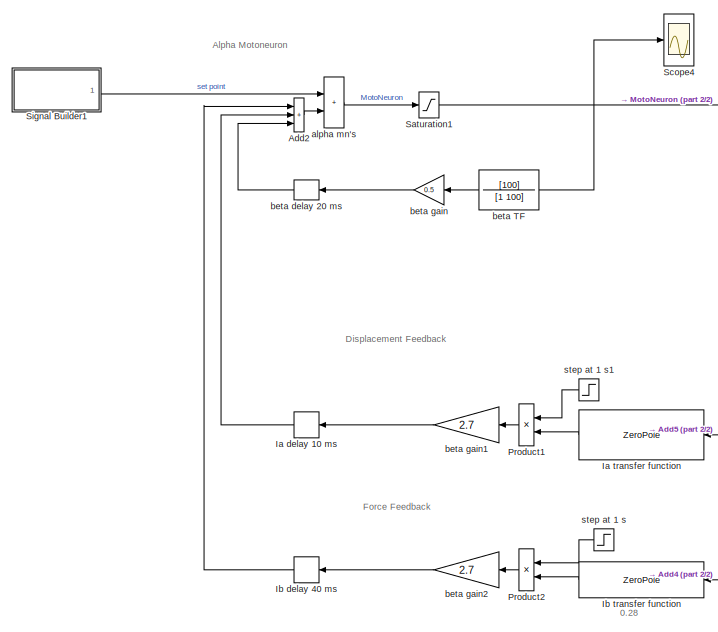
[diagram: root canvas - part 1/2, left side, full height]
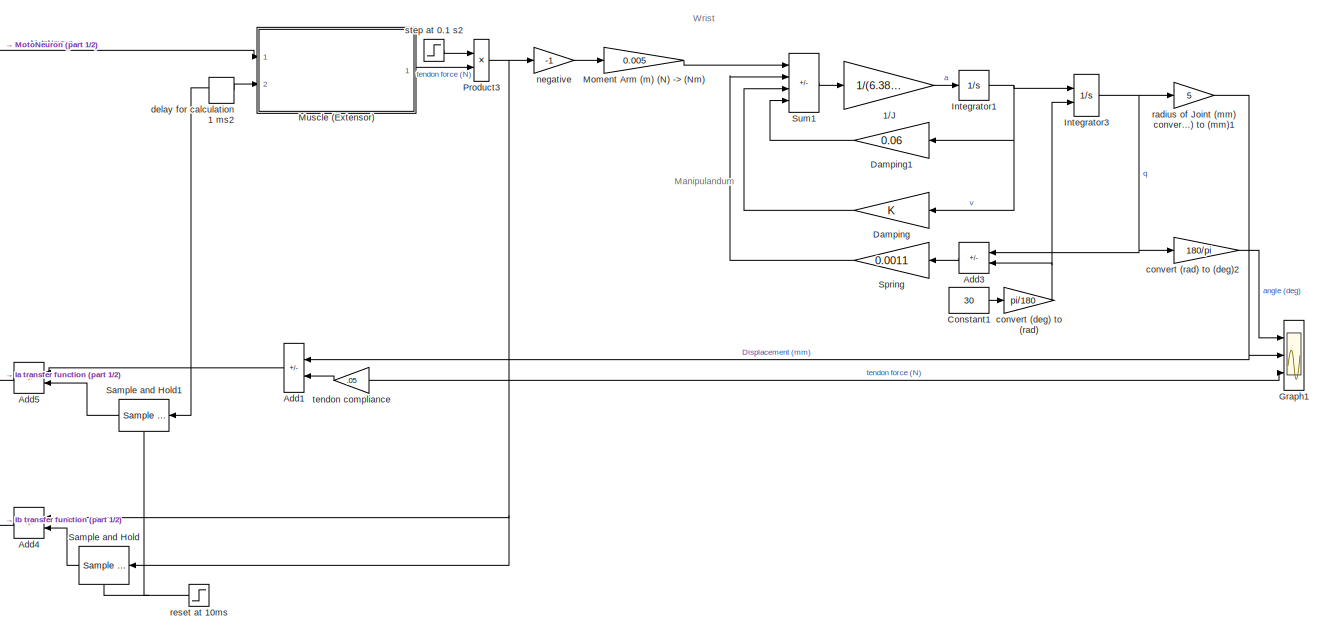
[diagram: root canvas - part 2/2, right side, full height]
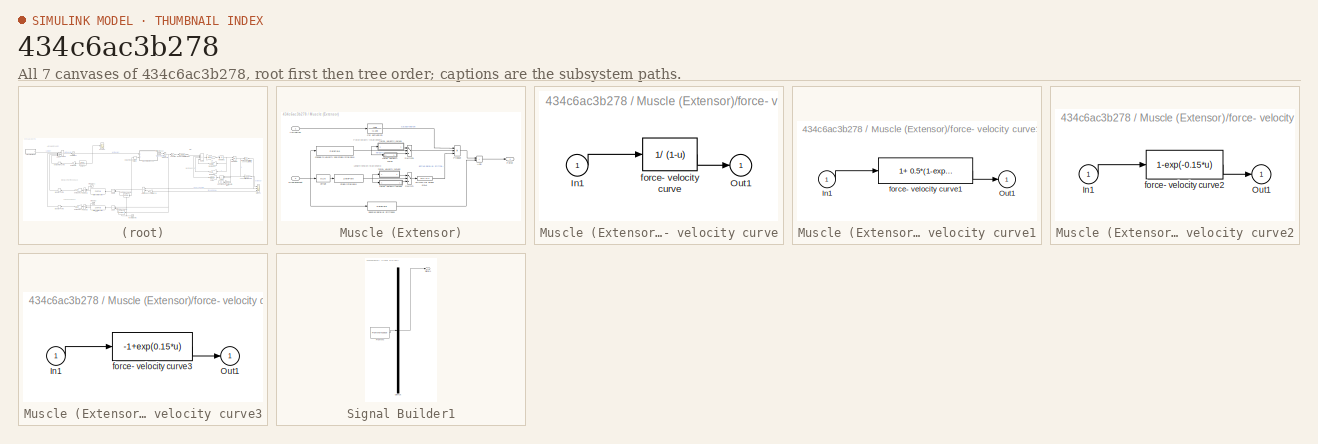
[diagram: thumbnail index - all 7 canvases of the model, root first then tree order]
MODEL slx_434c6ac3b278
KIND model
CONFIG AbsTol = auto
CONFIG EnableMultiTasking = off
CONFIG FixedStep = 0.001
CONFIG MaxStep = auto
CONFIG MinStep = auto
CONFIG RelTol = 1e-3
CONFIG SampleTimeConstraint = Unconstrained
CONFIG SolverName = ode4
CONFIG StartTime = 0.0
CONFIG StopTime = 4
BLOCK [Gain] 1//J 
  Gain = 1/(6.38e-3)
  OutDataTypeStr = Inherit: Same as input
  ParamDataTypeStr = Inherit: Same as input
  SaturateOnIntegerOverflow = on
BLOCK [Sum] Add1
  IconShape = rectangular
  Inputs = +-
  Ports = [2, 1]
BLOCK [Sum] Add2
  IconShape = rectangular
  Inputs = +++
  Ports = [3, 1]
BLOCK [Sum] Add3
  IconShape = rectangular
  Inputs = +-
  Ports = [2, 1]
BLOCK [Sum] Add4
  IconShape = rectangular
  Inputs = +-
  Ports = [2, 1]
BLOCK [Sum] Add5
  IconShape = rectangular
  Inputs = +-
  Ports = [2, 1]
BLOCK [Constant] Constant1
  Value = 30
BLOCK [Gain] Damping
  OutDataTypeStr = Inherit: Same as input
  ParamDataTypeStr = Inherit: Same as input
  SaturateOnIntegerOverflow = on
BLOCK [Gain] Damping1
  Gain = 0.06
  OutDataTypeStr = Inherit: Same as input
  ParamDataTypeStr = Inherit: Same as input
  SaturateOnIntegerOverflow = on
BLOCK [Scope] Graph1
  Floating = off
  NumInputPorts = 3
  Ports = [3]
  ScopeSpecificationString = Simulink.scopes.TimeScopeBlockCfg('CurrentConfiguration', extmgr.ConfigurationSet(extmgr.Configuration('Core','General UI',true),extmgr.Configuration('Core','Source UI',true),extmgr.Configuration('Sources','WiredSimulink',true,'DataLoggingSaveFormat','Array','DataLoggingDecimation','1','DataLoggingDecimateData',true,'DataLoggingVariableName','ScopeData1'),extmgr.Configuration('Visuals','Time Domai...<+3101ch>
BLOCK [TransportDelay] Ia delay 10 ms
  DelayTime = .01
  NameLocation = top
  Ports = [1, 1]
BLOCK [ZeroPole] Ia transfer function
  Poles = [-.04; -.8; -100; -100]
  Zeros = [0; -.4; -4; -44]
BLOCK [TransportDelay] Ib delay 40 ms
  DelayTime = 0.04
  NameLocation = top
  Ports = [1, 1]
BLOCK [ZeroPole] Ib transfer function
  Gain = [0.28]
  NameLocation = top
  Poles = [-.2; -2; -37]
  Zeros = [-.15; -1.5; -16]
BLOCK [Integrator] Integrator1
  Ports = [1, 1]
BLOCK [Integrator] Integrator3
  AttributesFormatString = q0 = %<InitialCondition> rad
  InitialCondition = 0.5236
  InitialConditionSource = external
  Ports = [2, 1]
BLOCK [Gain] Moment Arm (m) (N) -> (Nm)
  Gain = 0.005
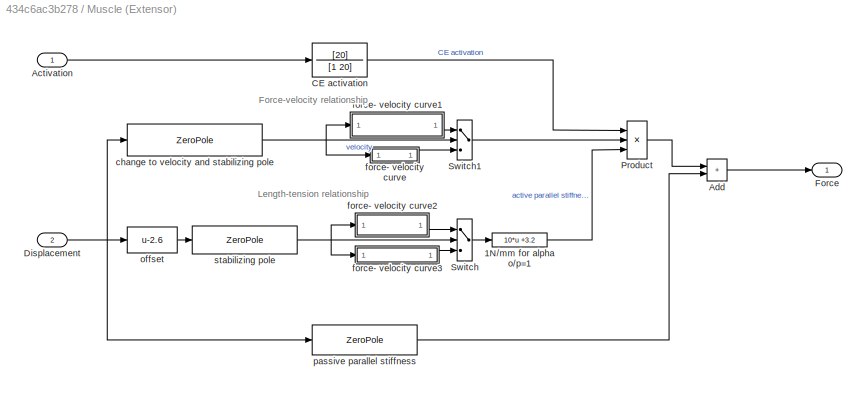
BLOCK [SubSystem] Muscle (Extensor)
  Ports = [2, 1]
  RequestExecContextInheritance = off
BLOCK [Fcn] Muscle (Extensor)/1N//mm for alpha o//p=1
  Expr = 10*u +3.2
BLOCK [Inport] Muscle (Extensor)/Activation
BLOCK [Sum] Muscle (Extensor)/Add
  IconShape = rectangular
  Ports = [2, 1]
BLOCK [TransferFcn] Muscle (Extensor)/CE activation
  AttributesFormatString = Low-pass Filter\ncutoff: 20 (rad/s)=3.2Hz
  Denominator = [1 20]
  NameLocation = top
  Numerator = [20]
BLOCK [Inport] Muscle (Extensor)/Displacement
  Port = 2
BLOCK [Outport] Muscle (Extensor)/Force
BLOCK [Product] Muscle (Extensor)/Product
  InputSameDT = on
  Inputs = 3
  OutDataTypeStr = Inherit: Same as first input
  Ports = [3, 1]
  RndMeth = Zero
  SaturateOnIntegerOverflow = on
BLOCK [Switch] Muscle (Extensor)/Switch
BLOCK [Switch] Muscle (Extensor)/Switch1
BLOCK [ZeroPole] Muscle (Extensor)/change to velocity and stabilizing pole
  Gain = [1500]
  NameLocation = top
  Poles = [-500,-500]
  Zeros = [0]
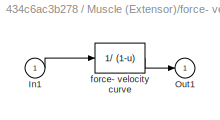
BLOCK [SubSystem] Muscle (Extensor)/force- velocity curve
  NameLocation = top
  Ports = [1, 1]
  RequestExecContextInheritance = off
BLOCK [Inport] Muscle (Extensor)/force- velocity curve/In1
BLOCK [Outport] Muscle (Extensor)/force- velocity curve/Out1
BLOCK [Fcn] Muscle (Extensor)/force- velocity curve/force- velocity curve
  Expr = 1/ (1-u)
  NameLocation = top
BLOCK [SubSystem] Muscle (Extensor)/force- velocity curve1
  NameLocation = top
  Ports = [1, 1]
  RequestExecContextInheritance = off
BLOCK [Inport] Muscle (Extensor)/force- velocity curve1/In1
BLOCK [Outport] Muscle (Extensor)/force- velocity curve1/Out1
BLOCK [Fcn] Muscle (Extensor)/force- velocity curve1/force- velocity curve1
  Expr = 1+ 0.5*(1-exp(-1.5*u))
  NameLocation = top
BLOCK [SubSystem] Muscle (Extensor)/force- velocity curve2
  NameLocation = top
  Ports = [1, 1]
  RequestExecContextInheritance = off
BLOCK [Inport] Muscle (Extensor)/force- velocity curve2/In1
BLOCK [Outport] Muscle (Extensor)/force- velocity curve2/Out1
BLOCK [Fcn] Muscle (Extensor)/force- velocity curve2/force- velocity curve2
  Expr = 1-exp(-0.15*u)
  NameLocation = top
BLOCK [SubSystem] Muscle (Extensor)/force- velocity curve3
  NameLocation = top
  Ports = [1, 1]
  RequestExecContextInheritance = off
BLOCK [Inport] Muscle (Extensor)/force- velocity curve3/In1
BLOCK [Outport] Muscle (Extensor)/force- velocity curve3/Out1
BLOCK [Fcn] Muscle (Extensor)/force- velocity curve3/force- velocity curve3
  Expr = -1+exp(0.15*u)
  NameLocation = top
BLOCK [Fcn] Muscle (Extensor)/offset
  Expr = u-2.6
BLOCK [ZeroPole] Muscle (Extensor)/passive parallel stiffness
  AttributesFormatString = .25N/mm
  Gain = [5]
  Poles = [-500]
  Zeros = [-25]
BLOCK [ZeroPole] Muscle (Extensor)/stabilizing pole
  AttributesFormatString = Low-pass Filter\ncutoff: %<Gain>(rad/s)
  Gain = [500]
  Poles = [-500]
  Zeros = [ ]
BLOCK [Product] Product1
  InputSameDT = on
  OutDataTypeStr = Inherit: Same as first input
  Ports = [2, 1]
  RndMeth = Zero
  SaturateOnIntegerOverflow = on
BLOCK [Product] Product2
  InputSameDT = on
  OutDataTypeStr = Inherit: Same as first input
  Ports = [2, 1]
  RndMeth = Zero
  SaturateOnIntegerOverflow = on
BLOCK [Product] Product3
  InputSameDT = on
  OutDataTypeStr = Inherit: Same as first input
  Ports = [2, 1]
  RndMeth = Zero
  SaturateOnIntegerOverflow = on
BLOCK [Reference] Sample and Hold  REF=dspsigops/Sample
and Hold
  NameLocation = top
  Ports = [1, 1, 0, 1]
  SourceBlock = dspsigops/Sample\nand Hold
  SourceProductBaseCode = DS
  SourceType = Sample and Hold
BLOCK [Reference] Sample and Hold1  REF=dspsigops/Sample
and Hold
  NameLocation = top
  Ports = [1, 1, 0, 1]
  SourceBlock = dspsigops/Sample\nand Hold
  SourceProductBaseCode = DS
  SourceType = Sample and Hold
BLOCK [Saturate] Saturation1
  LowerLimit = 0
  UpperLimit = inf
BLOCK [Scope] Scope4
  Floating = off
  NumInputPorts = 1
  Ports = [1]
  ScopeSpecificationString = Simulink.scopes.TimeScopeBlockCfg('CurrentConfiguration', extmgr.ConfigurationSet(extmgr.Configuration('Core','General UI',true),extmgr.Configuration('Core','Source UI',true),extmgr.Configuration('Sources','WiredSimulink',true),extmgr.Configuration('Visuals','Time Domain',true,'SerializedDisplays',{struct('MinYLimReal','-1.14915','MaxYLimReal','10.34236','YLabelReal','','MinYLimMag','0.00000','Max...<+1484ch>
BLOCK [SubSystem] Signal Builder1
  ClipboardFcn = sigbuilder_block('clipboard');
  CloseFcn = sigbuilder_block('close');
  ContinueFcn = sigbuilder_block('continue');
  CopyFcn = sigbuilder_block('copy');
  DeleteFcn = sigbuilder_block('delete');
  LoadFcn = sigbuilder_block('load');
  MaskHideContents = on
  ModelCloseFcn = sigbuilder_block('modelClose');
  NameChangeFcn = sigbuilder_block('namechange');
  OpenFcn = sigbuilder_block('open',[-1017 103.714 550.286 402.429 ]);
  PauseFcn = sigbuilder_block('pause');
  Ports = [0, 1]
  PreSaveFcn = sigbuilder_block('preSave');
  RequestExecContextInheritance = off
  StartFcn = sigbuilder_block('start');
  StopFcn = sigbuilder_block('stop');
  Tag = STV Subsys
BLOCK [Demux] Signal Builder1/Demux
  DisplayOption = none
  Outputs = 1
  Ports = [1, 1]
  Tag = STV Demux
BLOCK [FromWorkspace] Signal Builder1/FromWs
  Tag = STV FromWs
  VariableName = tuvar
BLOCK [Outport] Signal Builder1/Signal 1
  Tag = STV Outport
BLOCK [Gain] Spring
  Gain = 0.0011
  OutDataTypeStr = Inherit: Same as input
  ParamDataTypeStr = Inherit: Same as input
  SaturateOnIntegerOverflow = on
BLOCK [Sum] Sum1
  IconShape = rectangular
  InputSameDT = on
  Inputs = +---
  OutDataTypeStr = Inherit: Same as first input
  Ports = [4, 1]
  SaturateOnIntegerOverflow = on
BLOCK [Sum] alpha mn's
  IconShape = rectangular
  InputSameDT = on
  NameLocation = top
  OutDataTypeStr = Inherit: Same as first input
  Ports = [2, 1]
  SaturateOnIntegerOverflow = on
BLOCK [TransferFcn] beta TF
  Denominator = [1 100]
  NameLocation = top
  Numerator = [100]
BLOCK [TransportDelay] beta delay 20 ms
  DelayTime = .02
  Ports = [1, 1]
BLOCK [Gain] beta gain
  Gain = 0.5
  OutDataTypeStr = Inherit: Same as input
  ParamDataTypeStr = Inherit: Same as input
  SaturateOnIntegerOverflow = on
BLOCK [Gain] beta gain1
  Gain = 2.7
  OutDataTypeStr = Inherit: Same as input
  ParamDataTypeStr = Inherit: Same as input
  SaturateOnIntegerOverflow = on
BLOCK [Gain] beta gain2
  Gain = 2.7
  OutDataTypeStr = Inherit: Same as input
  ParamDataTypeStr = Inherit: Same as input
  SaturateOnIntegerOverflow = on
BLOCK [Gain] convert (deg) to (rad)
  Gain = pi/180
BLOCK [Gain] convert (rad) to (deg)2
  Gain = 180/pi
BLOCK [TransportDelay] delay for calculation 1 ms2
  DelayTime = .001
  InitialOutput = 2.6180
  NameLocation = top
  Ports = [1, 1]
BLOCK [Gain] negative
  Gain = -1
BLOCK [Gain] radius of Joint (mm) convert (rad) to (mm)1
  Gain = 5
BLOCK [Step] reset at 10ms
  NameLocation = top
  SampleTime = 0.001
  Time = 0.01
BLOCK [Step] step at 0.1 s2
  NameLocation = top
  SampleTime = 0.001
  Time = 0.01
BLOCK [Step] step at 1 s
  NameLocation = top
  SampleTime = 0.001
  Time = 0.1
BLOCK [Step] step at 1 s1
  NameLocation = top
  SampleTime = 0.001
  Time = 0.1
BLOCK [Gain] tendon compliance
  AttributesFormatString = (mm/N)
  Gain = .05
  OutDataTypeStr = Inherit: Same as input
  ParamDataTypeStr = Inherit: Same as input
  SaturateOnIntegerOverflow = on
ANNOTATION (root): 0.28
ANNOTATION (root): Alpha Motoneuron
ANNOTATION (root): Displacement Feedback
ANNOTATION (root): Force Feedback
ANNOTATION (root): Manipulandum
ANNOTATION (root): Wrist
ANNOTATION Muscle (Extensor): Force-velocity relationship
ANNOTATION Muscle (Extensor): Length-tension relationship
LINE 1//J :1 -> Integrator1:1
NET Add1:1 -> Add5:1, Sample and Hold1:1, delay for calculation 1 ms2:1
LINE Add2:1 -> alpha mn's:2
LINE Add3:1 -> Spring:1
LINE Add4:1 -> Ib transfer function:1
LINE Add5:1 -> Ia transfer function:1
LINE Constant1:1 -> convert (deg) to (rad):1
LINE Damping1:1 -> Sum1:4
LINE Damping:1 -> Sum1:3
LINE Ia delay 10 ms:1 -> Add2:2
LINE Ia transfer function:1 -> Product1:2
LINE Ib delay 40 ms:1 -> Add2:1
LINE Ib transfer function:1 -> Product2:2
NET Integrator1:1 -> Damping1:1, Damping:1, Integrator3:1
NET Integrator3:1 -> Add3:1, convert (rad) to (deg)2:1, radius of Joint (mm) convert (rad) to (mm)1:1
LINE Moment Arm (m) (N) -> (Nm):1 -> Sum1:1
LINE Muscle (Extensor)/1N//mm for alpha o//p=1:1 -> Muscle (Extensor)/Product:3
LINE Muscle (Extensor)/Activation:1 -> Muscle (Extensor)/CE activation:1
LINE Muscle (Extensor)/Add:1 -> Muscle (Extensor)/Force:1
LINE Muscle (Extensor)/CE activation:1 -> Muscle (Extensor)/Product:1
NET Muscle (Extensor)/Displacement:1 -> Muscle (Extensor)/change to velocity and stabilizing pole:1, Muscle (Extensor)/offset:1, Muscle (Extensor)/passive parallel stiffness:1
LINE Muscle (Extensor)/Product:1 -> Muscle (Extensor)/Add:1
LINE Muscle (Extensor)/Switch1:1 -> Muscle (Extensor)/Product:2
LINE Muscle (Extensor)/Switch:1 -> Muscle (Extensor)/1N//mm for alpha o//p=1:1
NET Muscle (Extensor)/change to velocity and stabilizing pole:1 -> Muscle (Extensor)/Switch1:2, Muscle (Extensor)/force- velocity curve1:1, Muscle (Extensor)/force- velocity curve:1
LINE Muscle (Extensor)/force- velocity curve/In1:1 -> Muscle (Extensor)/force- velocity curve/force- velocity curve:1
LINE Muscle (Extensor)/force- velocity curve/force- velocity curve:1 -> Muscle (Extensor)/force- velocity curve/Out1:1
LINE Muscle (Extensor)/force- velocity curve1/In1:1 -> Muscle (Extensor)/force- velocity curve1/force- velocity curve1:1
LINE Muscle (Extensor)/force- velocity curve1/force- velocity curve1:1 -> Muscle (Extensor)/force- velocity curve1/Out1:1
LINE Muscle (Extensor)/force- velocity curve1:1 -> Muscle (Extensor)/Switch1:1
LINE Muscle (Extensor)/force- velocity curve2/In1:1 -> Muscle (Extensor)/force- velocity curve2/force- velocity curve2:1
LINE Muscle (Extensor)/force- velocity curve2/force- velocity curve2:1 -> Muscle (Extensor)/force- velocity curve2/Out1:1
LINE Muscle (Extensor)/force- velocity curve2:1 -> Muscle (Extensor)/Switch:1
LINE Muscle (Extensor)/force- velocity curve3/In1:1 -> Muscle (Extensor)/force- velocity curve3/force- velocity curve3:1
LINE Muscle (Extensor)/force- velocity curve3/force- velocity curve3:1 -> Muscle (Extensor)/force- velocity curve3/Out1:1
LINE Muscle (Extensor)/force- velocity curve3:1 -> Muscle (Extensor)/Switch:3
LINE Muscle (Extensor)/force- velocity curve:1 -> Muscle (Extensor)/Switch1:3
LINE Muscle (Extensor)/offset:1 -> Muscle (Extensor)/stabilizing pole:1
LINE Muscle (Extensor)/passive parallel stiffness:1 -> Muscle (Extensor)/Add:2
NET Muscle (Extensor)/stabilizing pole:1 -> Muscle (Extensor)/Switch:2, Muscle (Extensor)/force- velocity curve2:1, Muscle (Extensor)/force- velocity curve3:1
LINE Muscle (Extensor):1 -> Product3:2
LINE Product1:1 -> beta gain1:1
LINE Product2:1 -> beta gain2:1
NET Product3:1 -> Add4:1, Graph1:3, Sample and Hold:1, negative:1, tendon compliance:1
LINE Sample and Hold1:1 -> Add5:2
LINE Sample and Hold:1 -> Add4:2
NET Saturation1:1 -> Muscle (Extensor):1, Scope4:1, beta TF:1
LINE Signal Builder1:1 -> alpha mn's:1
LINE Spring:1 -> Sum1:2
LINE Sum1:1 -> 1//J :1
LINE alpha mn's:1 -> Saturation1:1
LINE beta TF:1 -> beta gain:1
LINE beta delay 20 ms:1 -> Add2:3
LINE beta gain1:1 -> Ia delay 10 ms:1
LINE beta gain2:1 -> Ib delay 40 ms:1
LINE beta gain:1 -> beta delay 20 ms:1
NET convert (deg) to (rad):1 -> Add3:2, Integrator3:2
LINE convert (rad) to (deg)2:1 -> Graph1:1
LINE delay for calculation 1 ms2:1 -> Muscle (Extensor):2
LINE negative:1 -> Moment Arm (m) (N) -> (Nm):1
NET radius of Joint (mm) convert (rad) to (mm)1:1 -> Add1:1, Graph1:2
NET reset at 10ms:1 -> Sample and Hold1:trigger, Sample and Hold:trigger
LINE step at 0.1 s2:1 -> Product3:1
LINE step at 1 s1:1 -> Product1:1
LINE step at 1 s:1 -> Product2:1
LINE tendon compliance:1 -> Add1:2
note: NET lines group one-source signal fan-out (src -> all destinations, sorted); 1:1 wires keep LINE
